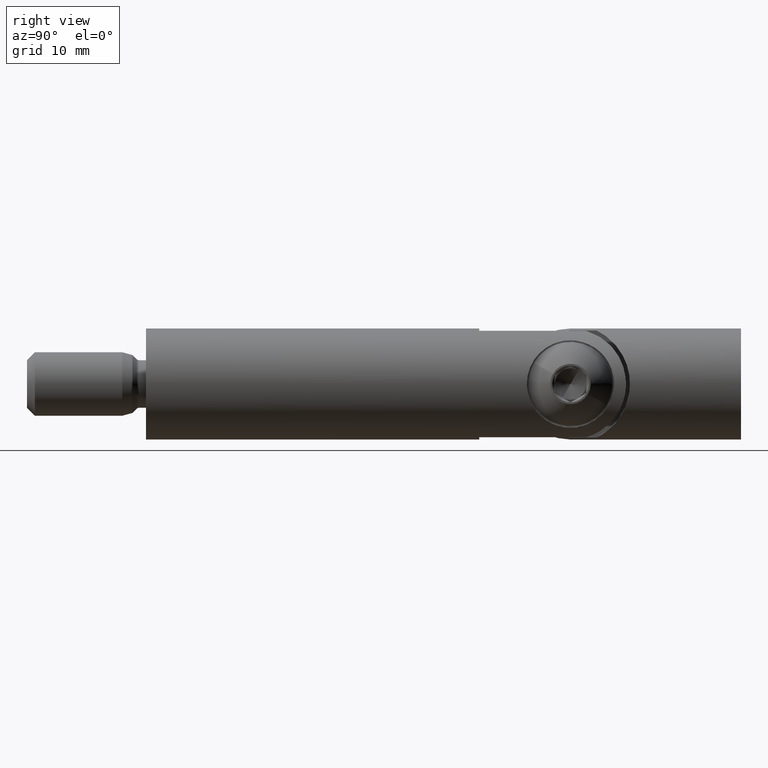
[diagram: clean part render]
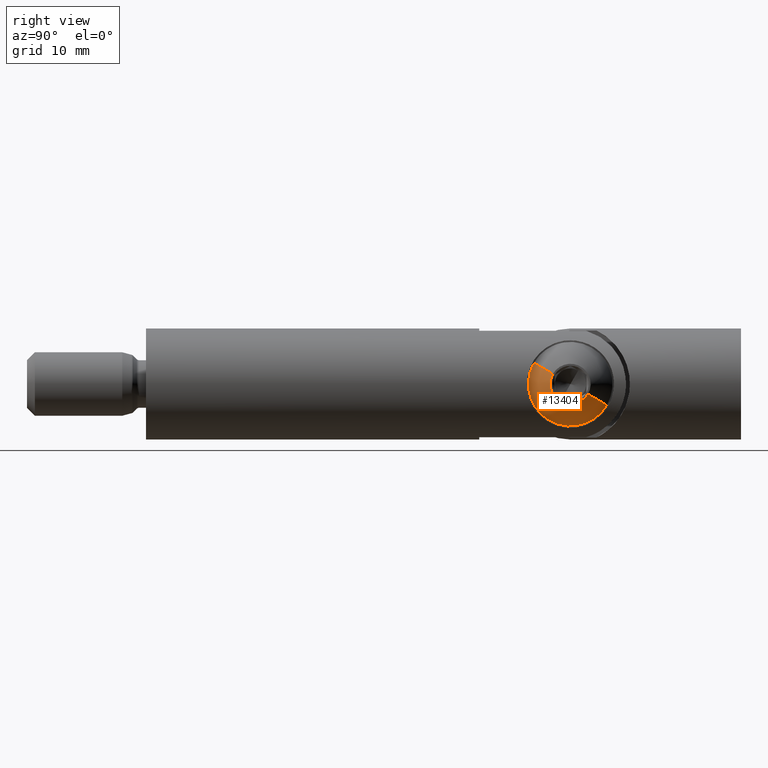
[diagram: same view with one face highlighted and labeled with its STEP entity id]
A machine part, right view. The second image highlights one B-rep face of the part: STEP entity #13404.
In plain terms, the highlighted spherical surface has radius 5.6637 mm.
Its self-contained STEP definition (entity closure, byte-faithful):
#115 = AXIS2_PLACEMENT_3D ( 'NONE', #1975, #14422, #7675 ) ;
#171 = EDGE_LOOP ( 'NONE', ( #1542, #7742, #3841, #10204, #14455 ) ) ;
#599 = CARTESIAN_POINT ( 'NONE',  ( 0.0000000000000000000, 5.058111541106021600, 0.0000000000000000000 ) ) ;
#660 = CARTESIAN_POINT ( 'NONE',  ( 0.0000000000000000000, 3.061350000000000900, 0.0000000000000000000 ) ) ;
#1146 = AXIS2_PLACEMENT_3D ( 'NONE', #9741, #2978, #12244 ) ;
#1542 = ORIENTED_EDGE ( 'NONE', *, *, #11267, .F. ) ;
#1801 = DIRECTION ( 'NONE',  ( 0.0000000000000000000, 0.0000000000000000000, -1.000000000000000000 ) ) ;
#1975 = CARTESIAN_POINT ( 'NONE',  ( 0.0000000000000000000, 3.061350000000000900, 0.0000000000000000000 ) ) ;
#2484 = CARTESIAN_POINT ( 'NONE',  ( 0.0000000000000000000, 5.058111541106021600, 0.0000000000000000000 ) ) ;
#2526 = DIRECTION ( 'NONE',  ( -0.0000000000000000000, 0.0000000000000000000, 1.000000000000000000 ) ) ;
#2964 = DIRECTION ( 'NONE',  ( -1.000000000000000000, 0.0000000000000000000, 0.0000000000000000000 ) ) ;
#2978 = DIRECTION ( 'NONE',  ( 1.224646799147353200E-016, 0.0000000000000000000, 1.000000000000000000 ) ) ;
#3407 = CARTESIAN_POINT ( 'NONE',  ( 5.300000000000000700, 3.061350000000000900, 0.0000000000000000000 ) ) ;
#3479 = CIRCLE ( 'NONE', #115, 5.299999999999999800 ) ;
#3841 = ORIENTED_EDGE ( 'NONE', *, *, #12474, .T. ) ;
#3959 = CIRCLE ( 'NONE', #1146, 5.663661064368179500 ) ;
#4224 = CARTESIAN_POINT ( 'NONE',  ( 2.548051076758503600, 0.0000000000000000000, 0.0000000000000000000 ) ) ;
#4883 = FACE_OUTER_BOUND ( 'NONE', #171, .T. ) ;
#5683 = AXIS2_PLACEMENT_3D ( 'NONE', #13199, #6322, #7485 ) ;
#5726 = VERTEX_POINT ( 'NONE', #4224 ) ;
#5762 = SPHERICAL_SURFACE ( 'NONE', #7569, 5.663661064368179500 ) ;
#6322 = DIRECTION ( 'NONE',  ( 0.0000000000000000000, -1.000000000000000000, 0.0000000000000000000 ) ) ;
#6453 = CARTESIAN_POINT ( 'NONE',  ( -2.548051076758503600, 0.0000000000000000000, 4.805545315348619700E-016 ) ) ;
#7028 = CIRCLE ( 'NONE', #5683, 2.548051076758503600 ) ;
#7139 = DIRECTION ( 'NONE',  ( 0.0000000000000000000, 0.0000000000000000000, -1.000000000000000000 ) ) ;
#7331 = CARTESIAN_POINT ( 'NONE',  ( -5.300000000000000700, 3.061350000000000900, 6.490628035480972900E-016 ) ) ;
#7485 = DIRECTION ( 'NONE',  ( 0.0000000000000000000, 0.0000000000000000000, -1.000000000000000000 ) ) ;
#7569 = AXIS2_PLACEMENT_3D ( 'NONE', #2484, #2526, #13539 ) ;
#7655 = VERTEX_POINT ( 'NONE', #6453 ) ;
#7675 = DIRECTION ( 'NONE',  ( 0.0000000000000000000, 0.0000000000000000000, -1.000000000000000000 ) ) ;
#7742 = ORIENTED_EDGE ( 'NONE', *, *, #13126, .T. ) ;
#7995 = VERTEX_POINT ( 'NONE', #10640 ) ;
#8545 = DIRECTION ( 'NONE',  ( 0.0000000000000000000, -1.000000000000000000, 0.0000000000000000000 ) ) ;
#9108 = CIRCLE ( 'NONE', #11095, 5.299999999999999800 ) ;
#9741 = CARTESIAN_POINT ( 'NONE',  ( 0.0000000000000000000, 5.058111541106021600, 0.0000000000000000000 ) ) ;
#10204 = ORIENTED_EDGE ( 'NONE', *, *, #10360, .T. ) ;
#10360 = EDGE_CURVE ( 'NONE', #14176, #5726, #14086, .T. ) ;
#10454 = EDGE_CURVE ( 'NONE', #7655, #5726, #7028, .T. ) ;
#10640 = CARTESIAN_POINT ( 'NONE',  ( 0.0000000000000000000, 3.061350000000000900, -5.299999999999999800 ) ) ;
#11095 = AXIS2_PLACEMENT_3D ( 'NONE', #660, #8545, #1801 ) ;
#11267 = EDGE_CURVE ( 'NONE', #12372, #7655, #3959, .T. ) ;
#12244 = DIRECTION ( 'NONE',  ( 1.000000000000000000, 0.0000000000000000000, -1.224646799147353200E-016 ) ) ;
#12291 = AXIS2_PLACEMENT_3D ( 'NONE', #599, #7139, #2964 ) ;
#12372 = VERTEX_POINT ( 'NONE', #7331 ) ;
#12474 = EDGE_CURVE ( 'NONE', #7995, #14176, #3479, .T. ) ;
#13126 = EDGE_CURVE ( 'NONE', #12372, #7995, #9108, .T. ) ;
#13199 = CARTESIAN_POINT ( 'NONE',  ( 0.0000000000000000000, 0.0000000000000000000, 0.0000000000000000000 ) ) ;
#13404 = ADVANCED_FACE ( 'NONE', ( #4883 ), #5762, .T. ) ;
#13539 = DIRECTION ( 'NONE',  ( 1.000000000000000000, 0.0000000000000000000, 0.0000000000000000000 ) ) ;
#14086 = CIRCLE ( 'NONE', #12291, 5.663661064368179500 ) ;
#14176 = VERTEX_POINT ( 'NONE', #3407 ) ;
#14422 = DIRECTION ( 'NONE',  ( 0.0000000000000000000, -1.000000000000000000, 0.0000000000000000000 ) ) ;
#14455 = ORIENTED_EDGE ( 'NONE', *, *, #10454, .F. ) ;